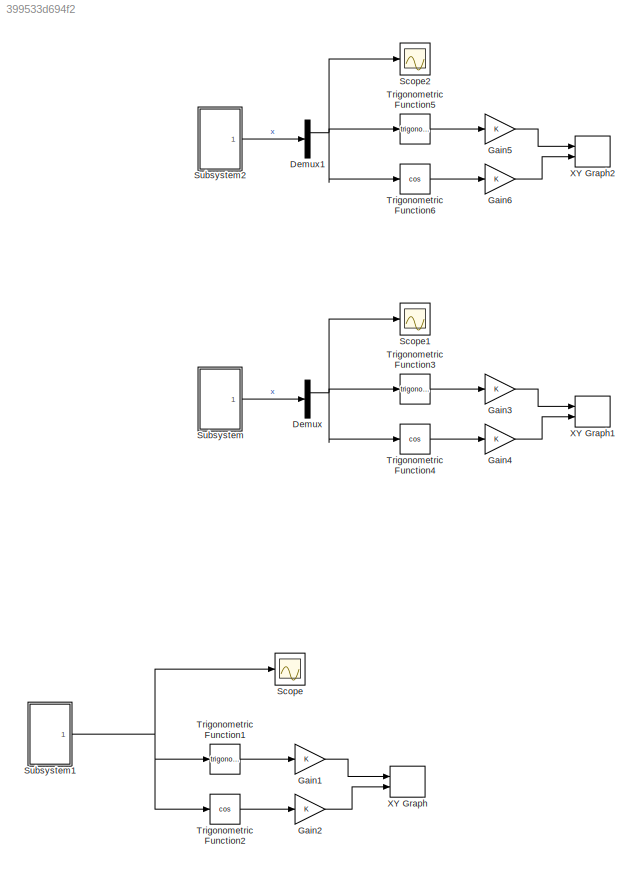
MODEL slx_399533d694f2
KIND model
CONFIG AbsTol = auto
CONFIG EnableMultiTasking = off
CONFIG FixedStep = auto
CONFIG MaxStep = auto
CONFIG MinStep = auto
CONFIG RelTol = 1e-3
CONFIG SampleTimeConstraint = Unconstrained
CONFIG SolverName = VariableStepAuto
CONFIG StartTime = 0.0
CONFIG StopTime = 10.0
BLOCK [Demux] Demux
  Outputs = 2
  Ports = [1, 2]
BLOCK [Demux] Demux1
  Outputs = 2
  Ports = [1, 2]
BLOCK [Gain] Gain1
BLOCK [Gain] Gain2
BLOCK [Gain] Gain3
BLOCK [Gain] Gain4
BLOCK [Gain] Gain5
BLOCK [Gain] Gain6
BLOCK [Scope] Scope
  Floating = off
  NumInputPorts = 1
  Ports = [1]
  ScopeSpecificationString = Simulink.scopes.TimeScopeBlockCfg('CurrentConfiguration', extmgr.ConfigurationSet(extmgr.Configuration('Core','General UI',true),extmgr.Configuration('Core','Source UI',true),extmgr.Configuration('Sources','WiredSimulink',true),extmgr.Configuration('Visuals','Time Domain',true),extmgr.Configuration('Tools','Plot Navigation',true),extmgr.Configuration('Tools','Measurements',true)),'Version','2022a'...<+1ch>
BLOCK [Scope] Scope1
  Floating = off
  NumInputPorts = 1
  Ports = [1]
  ScopeSpecificationString = Simulink.scopes.TimeScopeBlockCfg('CurrentConfiguration', extmgr.ConfigurationSet(extmgr.Configuration('Core','General UI',true),extmgr.Configuration('Core','Source UI',true),extmgr.Configuration('Sources','WiredSimulink',true,'DataLoggingVariableName','ScopeData1'),extmgr.Configuration('Visuals','Time Domain',true,'SerializedDisplays',{struct('MinYLimReal','0.83376','MaxYLimReal','5.44977','YLabe...<+1393ch>
BLOCK [Scope] Scope2
  Floating = off
  NumInputPorts = 1
  Ports = [1]
  ScopeSpecificationString = Simulink.scopes.TimeScopeBlockCfg('CurrentConfiguration', extmgr.ConfigurationSet(extmgr.Configuration('Core','General UI',true),extmgr.Configuration('Core','Source UI',true),extmgr.Configuration('Sources','WiredSimulink',true,'DataLoggingVariableName','ScopeData2'),extmgr.Configuration('Visuals','Time Domain',true,'SerializedDisplays',{struct('MinYLimReal','0.83376','MaxYLimReal','5.44977','YLabe...<+1393ch>
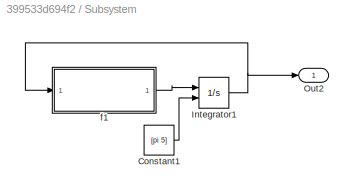
BLOCK [SubSystem] Subsystem
  Ports = [0, 1]
  RequestExecContextInheritance = off
BLOCK [Constant] Subsystem/Constant1
  Value = [pi 5]
BLOCK [Integrator] Subsystem/Integrator1
  InitialConditionSource = external
  Ports = [2, 1]
BLOCK [Outport] Subsystem/Out2
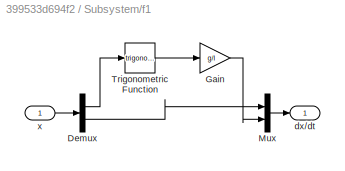
BLOCK [SubSystem] Subsystem/f1
  Ports = [1, 1]
  RequestExecContextInheritance = off
BLOCK [Demux] Subsystem/f1/Demux
  Outputs = 2
  Ports = [1, 2]
BLOCK [Gain] Subsystem/f1/Gain
  Gain = g/l
BLOCK [Mux] Subsystem/f1/Mux
  DisplayOption = bar
  Inputs = 2
  Ports = [2, 1]
BLOCK [Trigonometry] Subsystem/f1/Trigonometric Function
  Ports = [1, 1]
BLOCK [Outport] Subsystem/f1/dx//dt
BLOCK [Inport] Subsystem/f1/x
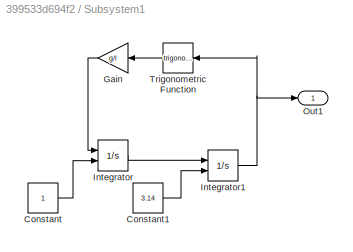
BLOCK [SubSystem] Subsystem1
  Ports = [0, 1]
  RequestExecContextInheritance = off
BLOCK [Constant] Subsystem1/Constant
BLOCK [Constant] Subsystem1/Constant1
  Value = 3.14
BLOCK [Gain] Subsystem1/Gain
  Gain = g/l
  NameLocation = top
BLOCK [Integrator] Subsystem1/Integrator
  InitialConditionSource = external
  Ports = [2, 1]
BLOCK [Integrator] Subsystem1/Integrator1
  InitialConditionSource = external
  Ports = [2, 1]
BLOCK [Outport] Subsystem1/Out1
BLOCK [Trigonometry] Subsystem1/Trigonometric Function
  NameLocation = top
  Ports = [1, 1]
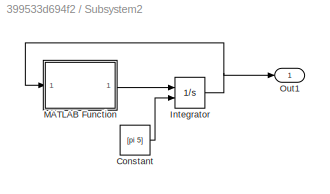
BLOCK [SubSystem] Subsystem2
  Ports = [0, 1]
  RequestExecContextInheritance = off
BLOCK [Constant] Subsystem2/Constant
  Value = [pi 5]
BLOCK [Integrator] Subsystem2/Integrator
  InitialConditionSource = external
  Ports = [2, 1]
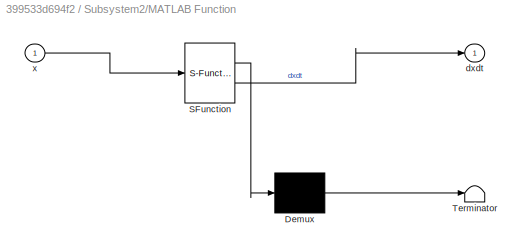
BLOCK [SubSystem] Subsystem2/MATLAB Function
  ErrorFcn = Stateflow.Translate.translate
  PermitHierarchicalResolution = ExplicitOnly
  Ports = [1, 1]
  RequestExecContextInheritance = off
  SFBlockType = MATLAB Function
  TreatAsAtomicUnit = on
BLOCK [Demux] Subsystem2/MATLAB Function/ Demux 
  Outputs = 1
  Ports = [1, 1]
BLOCK [S-Function] Subsystem2/MATLAB Function/ SFunction 
  EnableBusSupport = on
  FunctionName = sf_sfun
  PortCounts = [1 2]
  Ports = [1, 2]
  SFcnIsStateOwnerBlock = off
  SFunctionDeploymentMode = off
  Tag = Stateflow S-Function 2
BLOCK [Terminator] Subsystem2/MATLAB Function/ Terminator 
BLOCK [Outport] Subsystem2/MATLAB Function/dxdt
BLOCK [Inport] Subsystem2/MATLAB Function/x
BLOCK [Outport] Subsystem2/Out1
BLOCK [Trigonometry] Trigonometric Function1
  Ports = [1, 1]
BLOCK [Trigonometry] Trigonometric Function2
  Operator = cos
  Ports = [1, 1]
BLOCK [Trigonometry] Trigonometric Function3
  Ports = [1, 1]
BLOCK [Trigonometry] Trigonometric Function4
  Operator = cos
  Ports = [1, 1]
BLOCK [Trigonometry] Trigonometric Function5
  Ports = [1, 1]
BLOCK [Trigonometry] Trigonometric Function6
  Operator = cos
  Ports = [1, 1]
BLOCK [Record] XY Graph
  CompatibilityTag = XY
  FileSettingsInternal = {"entries":[{"content":{"excelSettings":{"content":{},"type":"Streamout.ExcelSettings"}},"type":"Streamout.FileSettingStorage","uuid":"6b5f49a7-b3b1-4d7e-bc90-530d4034afb4"}],"packageUris":["http://schema.mathworks.com/mf0/streamout_blocks/R2020a"],"version":"1.0"}
  Layout = [1 1]
  Ports = [2]
  SignalsInternal = {"entries":[{"content":{"signals":[{"content":{"blockPath":["TP_4/XY Graph"],"channel":[],"dimensions":[1],"domain":"TP_4/XY Graph","lineColor":"#a2142f","plots":[1],"port":1,"sid":[""],"signalID":770,"signalName":"Gain1"},"type":"RecordBlkView.Signal","uuid":"252f4a16-2fdb-4508-836e-7d7f95c59b1a"},{"content":{"blockPath":["TP_4/XY Graph"],"channel":[],"dimensions":[1],"domain":"TP_4/XY Graph","li...<+341ch>
  VisualizationBindings = {"xyplotplugin":{"info":[{"series":[{"bindingParametersList":[{"parameter":"X-Axis","signalID":770,"signalName":"Gain1"},{"parameter":"Y-Axis","signalID":774,"signalName":"Gain2"}],"seriesID":7779}],"subplotID":1}]}}
BLOCK [Record] XY Graph1
  CompatibilityTag = XY
  FileSettingsInternal = {"entries":[{"content":{"excelSettings":{"content":{},"type":"Streamout.ExcelSettings"}},"type":"Streamout.FileSettingStorage","uuid":"647a4500-99ce-4aa8-8361-fcd857458ba3"}],"packageUris":["http://schema.mathworks.com/mf0/streamout_blocks/R2020a"],"version":"1.0"}
  Layout = [1 1]
  Ports = [2]
  SignalsInternal = {"entries":[{"content":{"signals":[{"content":{"blockPath":["TP_4/XY Graph1"],"channel":[],"dimensions":[1],"domain":"TP_4/XY Graph1","lineColor":"#a2142f","plots":[1],"port":1,"sid":[""],"signalID":754,"signalName":"Gain3"},"type":"RecordBlkView.Signal","uuid":"8e395301-b303-424e-a96f-b943253f827c"},{"content":{"blockPath":["TP_4/XY Graph1"],"channel":[],"dimensions":[1],"domain":"TP_4/XY Graph1"...<+345ch>
  VisualizationBindings = {"xyplotplugin":{"info":[{"series":[{"bindingParametersList":[{"parameter":"X-Axis","signalID":754,"signalName":"Gain3"},{"parameter":"Y-Axis","signalID":758,"signalName":"Gain4"}],"seriesID":52056}],"subplotID":1}]}}
BLOCK [Record] XY Graph2
  CompatibilityTag = XY
  FileSettingsInternal = {"entries":[{"content":{"excelSettings":{"content":{},"type":"Streamout.ExcelSettings"}},"type":"Streamout.FileSettingStorage","uuid":"91d296fc-894f-4125-a729-7558be06892a"}],"packageUris":["http://schema.mathworks.com/mf0/streamout_blocks/R2020a"],"version":"1.0"}
  Layout = [1 1]
  Ports = [2]
  SignalsInternal = {"entries":[{"content":{"signals":[{"content":{"blockPath":["TP_4/XY Graph2"],"channel":[],"dimensions":[1,1],"domain":"TP_4/XY Graph2","lineColor":"#a2142f","plots":[1],"port":1,"sid":[""],"signalID":762,"signalName":"Gain5"},"type":"RecordBlkView.Signal","uuid":"373c4582-ecbd-4420-a1ec-272adeca90e9"},{"content":{"blockPath":["TP_4/XY Graph2"],"channel":[],"dimensions":[1,1],"domain":"TP_4/XY Gra...<+349ch>
  VisualizationBindings = {"xyplotplugin":{"info":[{"series":[{"bindingParametersList":[{"parameter":"X-Axis","signalID":762,"signalName":"Gain5"},{"parameter":"Y-Axis","signalID":766,"signalName":"Gain6"}],"seriesID":34063}],"subplotID":1}]}}
NET Demux1:1 -> Scope2:1, Trigonometric Function5:1, Trigonometric Function6:1
NET Demux:1 -> Scope1:1, Trigonometric Function3:1, Trigonometric Function4:1
LINE Gain1:1 -> XY Graph:1
LINE Gain2:1 -> XY Graph:2
LINE Gain3:1 -> XY Graph1:1
LINE Gain4:1 -> XY Graph1:2
LINE Gain5:1 -> XY Graph2:1
LINE Gain6:1 -> XY Graph2:2
LINE Subsystem/Constant1:1 -> Subsystem/Integrator1:2
NET Subsystem/Integrator1:1 -> Subsystem/Out2:1, Subsystem/f1:1
LINE Subsystem/f1/Demux:1 -> Subsystem/f1/Trigonometric Function:1
LINE Subsystem/f1/Demux:2 -> Subsystem/f1/Mux:1
LINE Subsystem/f1/Gain:1 -> Subsystem/f1/Mux:2
LINE Subsystem/f1/Mux:1 -> Subsystem/f1/dx//dt:1
LINE Subsystem/f1/Trigonometric Function:1 -> Subsystem/f1/Gain:1
LINE Subsystem/f1/x:1 -> Subsystem/f1/Demux:1
LINE Subsystem/f1:1 -> Subsystem/Integrator1:1
LINE Subsystem1/Constant1:1 -> Subsystem1/Integrator1:2
LINE Subsystem1/Constant:1 -> Subsystem1/Integrator:2
LINE Subsystem1/Gain:1 -> Subsystem1/Integrator:1
NET Subsystem1/Integrator1:1 -> Subsystem1/Out1:1, Subsystem1/Trigonometric Function:1
LINE Subsystem1/Integrator:1 -> Subsystem1/Integrator1:1
LINE Subsystem1/Trigonometric Function:1 -> Subsystem1/Gain:1
NET Subsystem1:1 -> Scope:1, Trigonometric Function1:1, Trigonometric Function2:1
LINE Subsystem2/Constant:1 -> Subsystem2/Integrator:2
NET Subsystem2/Integrator:1 -> Subsystem2/MATLAB Function:1, Subsystem2/Out1:1
LINE Subsystem2/MATLAB Function:1 -> Subsystem2/Integrator:1
LINE Subsystem2:1 -> Demux1:1
LINE Subsystem:1 -> Demux:1
LINE Trigonometric Function1:1 -> Gain1:1
LINE Trigonometric Function2:1 -> Gain2:1
LINE Trigonometric Function3:1 -> Gain3:1
LINE Trigonometric Function4:1 -> Gain4:1
LINE Trigonometric Function5:1 -> Gain5:1
LINE Trigonometric Function6:1 -> Gain6:1
note: NET lines group one-source signal fan-out (src -> all destinations, sorted); 1:1 wires keep LINE
CHART Subsystem2/MATLAB Function states=1 transitions=1
  STATE_LABEL 'eML_blk_kernel()'
  STATE_LABEL 'SCRIPT:\nfunction dxdt = fcn(x)\n    dxdt = [x(2) sin(x(1))*9.81/1];\n'
CHART  states=0 transitions=0
